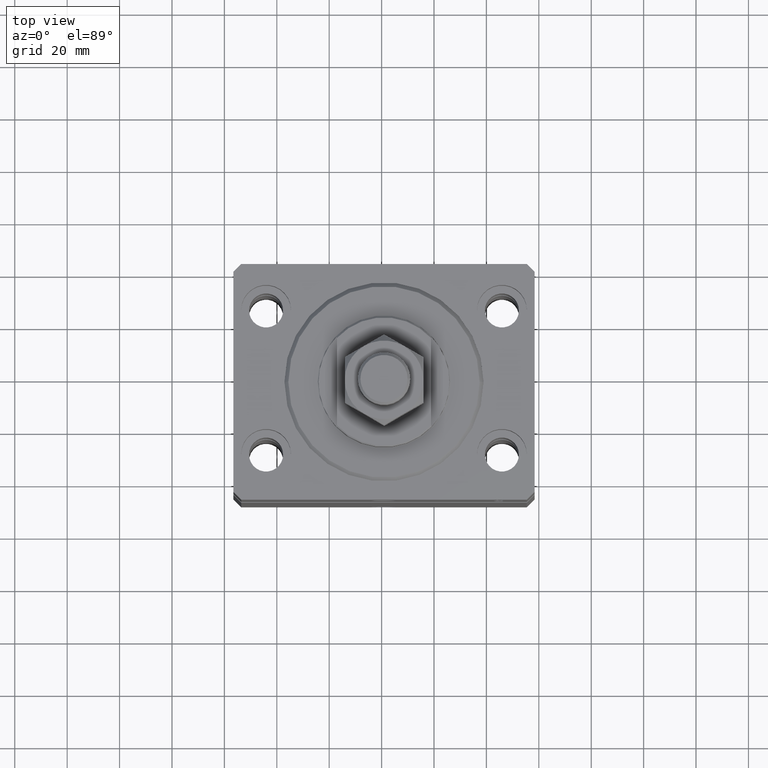
[diagram: clean part render]
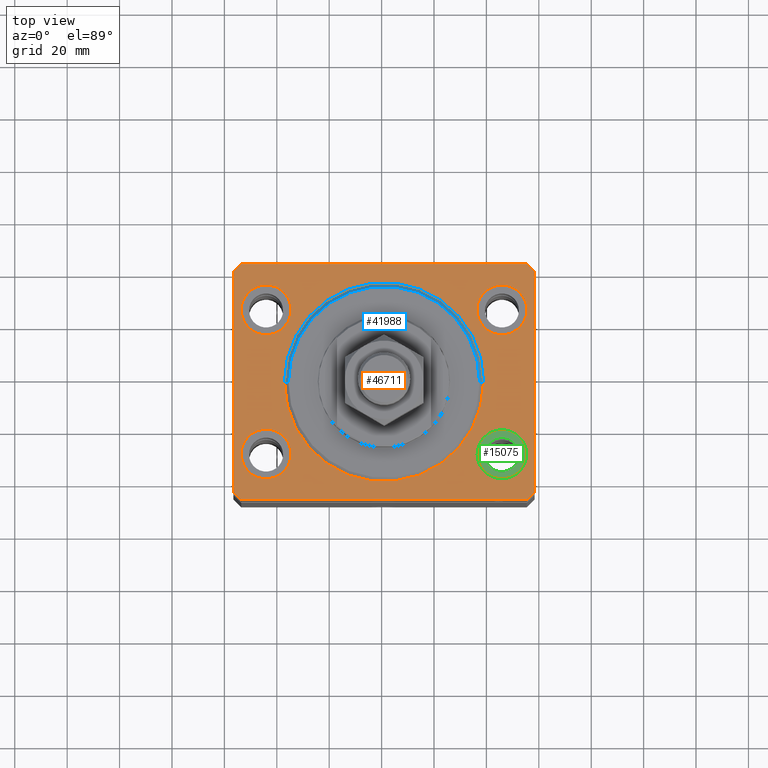
[diagram: same view with three faces highlighted in distinct colors, each labeled with its STEP entity id]
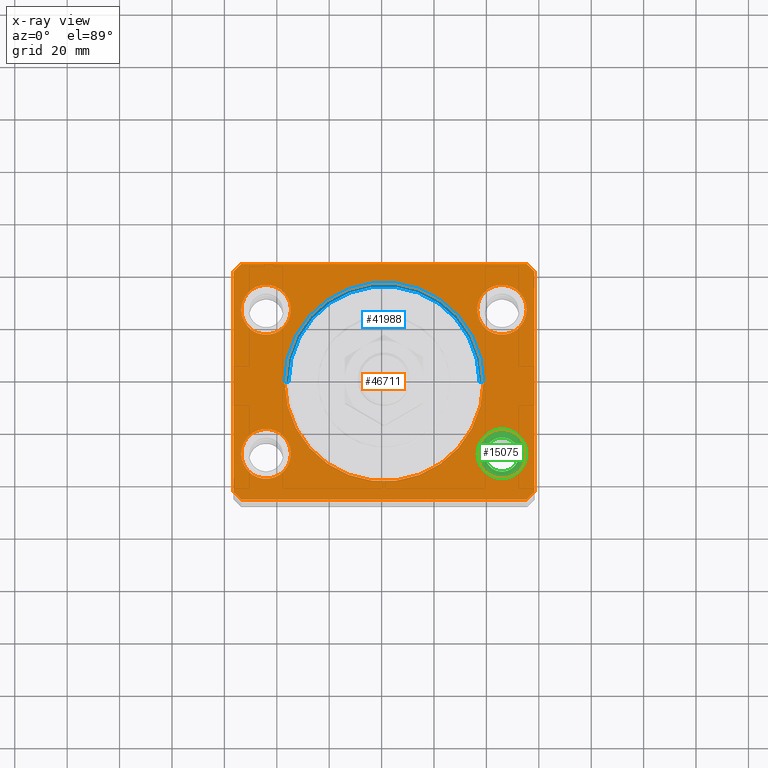
[diagram: x-ray of the same camera — body ghosted, the three highlighted faces saturated]
A machine part, top view with three faces highlighted in distinct colors.
The next image is the same camera in x-ray (body ghosted, the three faces saturated) — at least one of them is partly hidden behind the body in this view.
Their STEP definitions:

[orange] entity #46711 — the highlighted planar face has unit normal (0, 0, 1).
#166 = CARTESIAN_POINT ( 'NONE',  ( 54.50000000000058975, 45.00000000000002842, 0.000000000000000000 ) ) ;
#545 = CARTESIAN_POINT ( 'NONE',  ( -45.00000000000000000, -27.49999999999999645, 0.000000000000000000 ) ) ;
#829 = CARTESIAN_POINT ( 'NONE',  ( -57.50000000000000711, -42.00000000000000711, 0.000000000000000000 ) ) ;
#1154 = CARTESIAN_POINT ( 'NONE',  ( -35.50000000000000000, -27.49999999999999645, 0.000000000000000000 ) ) ;
#1348 = EDGE_LOOP ( 'NONE', ( #20866, #8584 ) ) ;
#1700 = AXIS2_PLACEMENT_3D ( 'NONE', #47651, #36268, #2964 ) ;
#2423 = CIRCLE ( 'NONE', #11755, 9.500000000000001776 ) ;
#2848 = VERTEX_POINT ( 'NONE', #28192 ) ;
#2964 = DIRECTION ( 'NONE',  ( 1.000000000000000000, 0.000000000000000000, 0.000000000000000000 ) ) ;
#4468 = LINE ( 'NONE', #829, #17046 ) ;
#4690 = CARTESIAN_POINT ( 'NONE',  ( 54.50000000000000711, -44.99999999999998579, 0.000000000000000000 ) ) ;
#4784 = FACE_BOUND ( 'NONE', #20594, .T. ) ;
#4891 = EDGE_CURVE ( 'NONE', #34683, #7607, #33095, .T. ) ;
#5012 = CARTESIAN_POINT ( 'NONE',  ( 0.000000000000000000, 0.000000000000000000, 0.000000000000000000 ) ) ;
#5207 = CARTESIAN_POINT ( 'NONE',  ( 0.000000000000000000, 0.000000000000000000, 0.000000000000000000 ) ) ;
#5492 = VERTEX_POINT ( 'NONE', #45613 ) ;
#6067 = AXIS2_PLACEMENT_3D ( 'NONE', #5012, #34206, #45593 ) ;
#6200 = AXIS2_PLACEMENT_3D ( 'NONE', #43903, #15007, #19144 ) ;
#7425 = CARTESIAN_POINT ( 'NONE',  ( 45.00000000000000000, -27.49999999999999645, 0.000000000000000000 ) ) ;
#7446 = ORIENTED_EDGE ( 'NONE', *, *, #32871, .T. ) ;
#7488 = LINE ( 'NONE', #18926, #12066 ) ;
#7607 = VERTEX_POINT ( 'NONE', #35770 ) ;
#7739 = VERTEX_POINT ( 'NONE', #17545 ) ;
#7815 = DIRECTION ( 'NONE',  ( 0.000000000000000000, 0.000000000000000000, 1.000000000000000000 ) ) ;
#7885 = VERTEX_POINT ( 'NONE', #23373 ) ;
#8500 = AXIS2_PLACEMENT_3D ( 'NONE', #47597, #33287, #25780 ) ;
#8584 = ORIENTED_EDGE ( 'NONE', *, *, #27821, .F. ) ;
#8663 = FACE_BOUND ( 'NONE', #14512, .T. ) ;
#8775 = CARTESIAN_POINT ( 'NONE',  ( 45.00000000000000000, 27.50000000000001776, 0.000000000000000000 ) ) ;
#8897 = FACE_BOUND ( 'NONE', #45175, .T. ) ;
#9045 = ORIENTED_EDGE ( 'NONE', *, *, #13120, .T. ) ;
#9283 = ORIENTED_EDGE ( 'NONE', *, *, #20931, .T. ) ;
#9565 = DIRECTION ( 'NONE',  ( 1.000000000000000000, 0.000000000000000000, 0.000000000000000000 ) ) ;
#10306 = ORIENTED_EDGE ( 'NONE', *, *, #28306, .T. ) ;
#11247 = VERTEX_POINT ( 'NONE', #41577 ) ;
#11358 = EDGE_CURVE ( 'NONE', #2848, #11247, #44135, .T. ) ;
#11755 = AXIS2_PLACEMENT_3D ( 'NONE', #545, #40878, #22690 ) ;
#11803 = LINE ( 'NONE', #23724, #22415 ) ;
#12066 = VECTOR ( 'NONE', #45141, 1000.000000000000000 ) ;
#12102 = CIRCLE ( 'NONE', #31491, 9.500000000000001776 ) ;
#12343 = LINE ( 'NONE', #27201, #30479 ) ;
#12359 = EDGE_CURVE ( 'NONE', #11247, #2848, #13947, .T. ) ;
#12378 = CARTESIAN_POINT ( 'NONE',  ( 57.50000000000000711, -41.99999999999998579, 0.000000000000000000 ) ) ;
#12650 = CIRCLE ( 'NONE', #38296, 9.500000000000001776 ) ;
#13120 = EDGE_CURVE ( 'NONE', #7739, #44106, #4468, .T. ) ;
#13947 = CIRCLE ( 'NONE', #8500, 9.500000000000001776 ) ;
#14238 = CARTESIAN_POINT ( 'NONE',  ( -54.50000000000000711, -45.00000000000000000, 0.000000000000000000 ) ) ;
#14512 = EDGE_LOOP ( 'NONE', ( #44818, #47635 ) ) ;
#14753 = CIRCLE ( 'NONE', #6200, 9.500000000000001776 ) ;
#15007 = DIRECTION ( 'NONE',  ( 0.000000000000000000, 0.000000000000000000, 1.000000000000000000 ) ) ;
#15225 = EDGE_CURVE ( 'NONE', #26552, #31194, #11803, .T. ) ;
#15913 = DIRECTION ( 'NONE',  ( 0.7071067811865491270, -0.7071067811865459074, 0.000000000000000000 ) ) ;
#17046 = VECTOR ( 'NONE', #15913, 1000.000000000000114 ) ;
#17054 = AXIS2_PLACEMENT_3D ( 'NONE', #5207, #17360, #9565 ) ;
#17360 = DIRECTION ( 'NONE',  ( 0.000000000000000000, 0.000000000000000000, 1.000000000000000000 ) ) ;
#17367 = CARTESIAN_POINT ( 'NONE',  ( -54.50000000000000000, -27.49999999999999645, 0.000000000000000000 ) ) ;
#17432 = ORIENTED_EDGE ( 'NONE', *, *, #27925, .T. ) ;
#17545 = CARTESIAN_POINT ( 'NONE',  ( -57.50000000000000711, -42.00000000000000711, 0.000000000000000000 ) ) ;
#17700 = ORIENTED_EDGE ( 'NONE', *, *, #40687, .T. ) ;
#17775 = AXIS2_PLACEMENT_3D ( 'NONE', #8775, #31618, #27977 ) ;
#17968 = EDGE_CURVE ( 'NONE', #7607, #34683, #23922, .T. ) ;
#18340 = VERTEX_POINT ( 'NONE', #4690 ) ;
#18617 = ORIENTED_EDGE ( 'NONE', *, *, #15225, .T. ) ;
#18926 = CARTESIAN_POINT ( 'NONE',  ( 54.50000000000058975, 45.00000000000002842, 0.000000000000000000 ) ) ;
#19144 = DIRECTION ( 'NONE',  ( 1.000000000000000000, 0.000000000000000000, 0.000000000000000000 ) ) ;
#19184 = DIRECTION ( 'NONE',  ( 0.000000000000000000, 0.000000000000000000, 1.000000000000000000 ) ) ;
#19346 = CARTESIAN_POINT ( 'NONE',  ( -54.50000000000000000, 27.50000000000000355, 0.000000000000000000 ) ) ;
#19389 = PLANE ( 'NONE',  #6067 ) ;
#19596 = VECTOR ( 'NONE', #27278, 1000.000000000000000 ) ;
#19849 = CARTESIAN_POINT ( 'NONE',  ( -54.49999999999999289, 45.00000000000000000, 0.000000000000000000 ) ) ;
#20594 = EDGE_LOOP ( 'NONE', ( #37831, #25234 ) ) ;
#20866 = ORIENTED_EDGE ( 'NONE', *, *, #22053, .F. ) ;
#20931 = EDGE_CURVE ( 'NONE', #44106, #18340, #36347, .T. ) ;
#21176 = ORIENTED_EDGE ( 'NONE', *, *, #4891, .F. ) ;
#21648 = VERTEX_POINT ( 'NONE', #22865 ) ;
#21953 = DIRECTION ( 'NONE',  ( 0.000000000000000000, 0.000000000000000000, 1.000000000000000000 ) ) ;
#21965 = VERTEX_POINT ( 'NONE', #19346 ) ;
#21966 = CARTESIAN_POINT ( 'NONE',  ( 57.50000000000055422, 41.99999999999997868, 0.000000000000000000 ) ) ;
#22053 = EDGE_CURVE ( 'NONE', #39234, #7885, #38753, .T. ) ;
#22109 = EDGE_CURVE ( 'NONE', #5492, #42129, #36770, .T. ) ;
#22415 = VECTOR ( 'NONE', #41434, 1000.000000000000000 ) ;
#22517 = DIRECTION ( 'NONE',  ( 0.000000000000000000, 0.000000000000000000, 1.000000000000000000 ) ) ;
#22671 = CIRCLE ( 'NONE', #1700, 38.00000000000000000 ) ;
#22690 = DIRECTION ( 'NONE',  ( 1.000000000000000000, 0.000000000000000000, 0.000000000000000000 ) ) ;
#22788 = FACE_BOUND ( 'NONE', #1348, .T. ) ;
#22865 = CARTESIAN_POINT ( 'NONE',  ( -35.50000000000000000, 27.50000000000000355, 0.000000000000000000 ) ) ;
#23039 = FACE_BOUND ( 'NONE', #30150, .T. ) ;
#23373 = CARTESIAN_POINT ( 'NONE',  ( -38.00000000000000000, 4.653657836759941941E-15, 0.000000000000000000 ) ) ;
#23724 = CARTESIAN_POINT ( 'NONE',  ( -54.49999999999999289, 45.00000000000000000, 0.000000000000000000 ) ) ;
#23922 = CIRCLE ( 'NONE', #42516, 9.500000000000001776 ) ;
#24247 = VECTOR ( 'NONE', #29049, 1000.000000000000000 ) ;
#24374 = EDGE_CURVE ( 'NONE', #21648, #21965, #14753, .T. ) ;
#25136 = CARTESIAN_POINT ( 'NONE',  ( -54.50000000000000711, -45.00000000000000000, 0.000000000000000000 ) ) ;
#25177 = VERTEX_POINT ( 'NONE', #12378 ) ;
#25234 = ORIENTED_EDGE ( 'NONE', *, *, #44758, .F. ) ;
#25418 = LINE ( 'NONE', #25902, #24247 ) ;
#25609 = CARTESIAN_POINT ( 'NONE',  ( 45.00000000000000000, -27.49999999999999645, 0.000000000000000000 ) ) ;
#25780 = DIRECTION ( 'NONE',  ( 1.000000000000000000, 0.000000000000000000, 0.000000000000000000 ) ) ;
#25902 = CARTESIAN_POINT ( 'NONE',  ( -57.49999999999998579, 42.00000000000000711, 0.000000000000000000 ) ) ;
#26552 = VERTEX_POINT ( 'NONE', #19849 ) ;
#26798 = CARTESIAN_POINT ( 'NONE',  ( -45.00000000000000000, -27.49999999999999645, 0.000000000000000000 ) ) ;
#27040 = LINE ( 'NONE', #41818, #19596 ) ;
#27201 = CARTESIAN_POINT ( 'NONE',  ( 54.50000000000000711, -44.99999999999998579, 0.000000000000000000 ) ) ;
#27278 = DIRECTION ( 'NONE',  ( 6.443258625056715108E-15, 1.000000000000000000, 0.000000000000000000 ) ) ;
#27451 = CARTESIAN_POINT ( 'NONE',  ( 54.50000000000000000, -27.49999999999999645, 0.000000000000000000 ) ) ;
#27821 = EDGE_CURVE ( 'NONE', #7885, #39234, #22671, .T. ) ;
#27925 = EDGE_CURVE ( 'NONE', #25177, #5492, #27040, .T. ) ;
#27977 = DIRECTION ( 'NONE',  ( 1.000000000000000000, 0.000000000000000000, 0.000000000000000000 ) ) ;
#28192 = CARTESIAN_POINT ( 'NONE',  ( 54.50000000000000000, 27.50000000000001776, 0.000000000000000000 ) ) ;
#28306 = EDGE_CURVE ( 'NONE', #31194, #7739, #25418, .T. ) ;
#29049 = DIRECTION ( 'NONE',  ( -2.478176394252581141E-16, -1.000000000000000000, 0.000000000000000000 ) ) ;
#29060 = DIRECTION ( 'NONE',  ( 1.000000000000000000, 1.273191542001326317E-16, 0.000000000000000000 ) ) ;
#29249 = DIRECTION ( 'NONE',  ( -0.7071067811865376918, 0.7071067811865574537, 0.000000000000000000 ) ) ;
#30150 = EDGE_LOOP ( 'NONE', ( #39009, #42426 ) ) ;
#30322 = EDGE_CURVE ( 'NONE', #31092, #37824, #2423, .T. ) ;
#30479 = VECTOR ( 'NONE', #38581, 1000.000000000000000 ) ;
#31092 = VERTEX_POINT ( 'NONE', #17367 ) ;
#31194 = VERTEX_POINT ( 'NONE', #37738 ) ;
#31491 = AXIS2_PLACEMENT_3D ( 'NONE', #37388, #19184, #38118 ) ;
#31618 = DIRECTION ( 'NONE',  ( 0.000000000000000000, 0.000000000000000000, 1.000000000000000000 ) ) ;
#32871 = EDGE_CURVE ( 'NONE', #18340, #25177, #12343, .T. ) ;
#33095 = CIRCLE ( 'NONE', #43939, 9.500000000000001776 ) ;
#33287 = DIRECTION ( 'NONE',  ( 0.000000000000000000, 0.000000000000000000, 1.000000000000000000 ) ) ;
#33317 = VECTOR ( 'NONE', #29249, 999.9999999999998863 ) ;
#34206 = DIRECTION ( 'NONE',  ( 0.000000000000000000, 0.000000000000000000, 1.000000000000000000 ) ) ;
#34683 = VERTEX_POINT ( 'NONE', #27451 ) ;
#35103 = EDGE_CURVE ( 'NONE', #37824, #31092, #12650, .T. ) ;
#35770 = CARTESIAN_POINT ( 'NONE',  ( 35.50000000000000000, -27.49999999999999645, 0.000000000000000000 ) ) ;
#36081 = EDGE_LOOP ( 'NONE', ( #17700, #18617, #10306, #9045, #9283, #7446, #17432, #40714 ) ) ;
#36268 = DIRECTION ( 'NONE',  ( 0.000000000000000000, 0.000000000000000000, 1.000000000000000000 ) ) ;
#36347 = LINE ( 'NONE', #14238, #44114 ) ;
#36770 = LINE ( 'NONE', #21966, #33317 ) ;
#37388 = CARTESIAN_POINT ( 'NONE',  ( -45.00000000000000000, 27.50000000000000355, 0.000000000000000000 ) ) ;
#37738 = CARTESIAN_POINT ( 'NONE',  ( -57.49999999999998579, 42.00000000000000711, 0.000000000000000000 ) ) ;
#37824 = VERTEX_POINT ( 'NONE', #1154 ) ;
#37830 = FACE_OUTER_BOUND ( 'NONE', #36081, .T. ) ;
#37831 = ORIENTED_EDGE ( 'NONE', *, *, #24374, .F. ) ;
#38118 = DIRECTION ( 'NONE',  ( 1.000000000000000000, 0.000000000000000000, 0.000000000000000000 ) ) ;
#38296 = AXIS2_PLACEMENT_3D ( 'NONE', #26798, #7815, #40620 ) ;
#38581 = DIRECTION ( 'NONE',  ( 0.7071067811865483499, 0.7071067811865466846, 0.000000000000000000 ) ) ;
#38753 = CIRCLE ( 'NONE', #17054, 38.00000000000000000 ) ;
#39009 = ORIENTED_EDGE ( 'NONE', *, *, #35103, .F. ) ;
#39234 = VERTEX_POINT ( 'NONE', #42090 ) ;
#39678 = DIRECTION ( 'NONE',  ( 1.000000000000000000, 0.000000000000000000, 0.000000000000000000 ) ) ;
#40620 = DIRECTION ( 'NONE',  ( 1.000000000000000000, 0.000000000000000000, 0.000000000000000000 ) ) ;
#40687 = EDGE_CURVE ( 'NONE', #42129, #26552, #7488, .T. ) ;
#40714 = ORIENTED_EDGE ( 'NONE', *, *, #22109, .T. ) ;
#40878 = DIRECTION ( 'NONE',  ( 0.000000000000000000, 0.000000000000000000, 1.000000000000000000 ) ) ;
#40945 = DIRECTION ( 'NONE',  ( 1.000000000000000000, 0.000000000000000000, 0.000000000000000000 ) ) ;
#41434 = DIRECTION ( 'NONE',  ( -0.7071067811865483499, -0.7071067811865466846, 0.000000000000000000 ) ) ;
#41577 = CARTESIAN_POINT ( 'NONE',  ( 35.50000000000000000, 27.50000000000001776, 0.000000000000000000 ) ) ;
#41818 = CARTESIAN_POINT ( 'NONE',  ( 57.50000000000000711, -41.99999999999998579, 0.000000000000000000 ) ) ;
#42090 = CARTESIAN_POINT ( 'NONE',  ( 38.00000000000000000, 0.000000000000000000, 0.000000000000000000 ) ) ;
#42129 = VERTEX_POINT ( 'NONE', #166 ) ;
#42426 = ORIENTED_EDGE ( 'NONE', *, *, #30322, .F. ) ;
#42516 = AXIS2_PLACEMENT_3D ( 'NONE', #7425, #22517, #40945 ) ;
#43903 = CARTESIAN_POINT ( 'NONE',  ( -45.00000000000000000, 27.50000000000000355, 0.000000000000000000 ) ) ;
#43939 = AXIS2_PLACEMENT_3D ( 'NONE', #25609, #21953, #39678 ) ;
#44093 = ORIENTED_EDGE ( 'NONE', *, *, #17968, .F. ) ;
#44106 = VERTEX_POINT ( 'NONE', #25136 ) ;
#44114 = VECTOR ( 'NONE', #29060, 1000.000000000000000 ) ;
#44135 = CIRCLE ( 'NONE', #17775, 9.500000000000001776 ) ;
#44758 = EDGE_CURVE ( 'NONE', #21965, #21648, #12102, .T. ) ;
#44818 = ORIENTED_EDGE ( 'NONE', *, *, #11358, .F. ) ;
#45141 = DIRECTION ( 'NONE',  ( -1.000000000000000000, -2.546383084002639322E-16, 0.000000000000000000 ) ) ;
#45175 = EDGE_LOOP ( 'NONE', ( #21176, #44093 ) ) ;
#45593 = DIRECTION ( 'NONE',  ( 1.000000000000000000, 0.000000000000000000, -0.000000000000000000 ) ) ;
#45613 = CARTESIAN_POINT ( 'NONE',  ( 57.50000000000055422, 41.99999999999997868, 0.000000000000000000 ) ) ;
#46711 = ADVANCED_FACE ( 'NONE', ( #23039, #8897, #8663, #4784, #22788, #37830 ), #19389, .T. ) ;
#47597 = CARTESIAN_POINT ( 'NONE',  ( 45.00000000000000000, 27.50000000000001776, 0.000000000000000000 ) ) ;
#47635 = ORIENTED_EDGE ( 'NONE', *, *, #12359, .F. ) ;
#47651 = CARTESIAN_POINT ( 'NONE',  ( 0.000000000000000000, 0.000000000000000000, 0.000000000000000000 ) ) ;

[blue] entity #41988 — the highlighted conical surface has half-angle 45 deg.
#3013 = CIRCLE ( 'NONE', #10738, 38.00000000000000000 ) ;
#3502 = ORIENTED_EDGE ( 'NONE', *, *, #28964, .F. ) ;
#3722 = CARTESIAN_POINT ( 'NONE',  ( 0.000000000000000000, 0.000000000000000000, 1.499999999999987566 ) ) ;
#4860 = VECTOR ( 'NONE', #37248, 1000.000000000000114 ) ;
#5507 = DIRECTION ( 'NONE',  ( 1.000000000000000000, 0.000000000000000000, 0.000000000000000000 ) ) ;
#6931 = DIRECTION ( 'NONE',  ( 1.000000000000000000, 0.000000000000000000, 0.000000000000000000 ) ) ;
#7620 = VERTEX_POINT ( 'NONE', #35050 ) ;
#8690 = DIRECTION ( 'NONE',  ( -0.000000000000000000, -0.000000000000000000, -1.000000000000000000 ) ) ;
#10191 = VERTEX_POINT ( 'NONE', #11202 ) ;
#10738 = AXIS2_PLACEMENT_3D ( 'NONE', #44094, #40215, #6931 ) ;
#11202 = CARTESIAN_POINT ( 'NONE',  ( 36.50000000000000000, 0.000000000000000000, 0.000000000000000000 ) ) ;
#11494 = FACE_OUTER_BOUND ( 'NONE', #20022, .T. ) ;
#12332 = CARTESIAN_POINT ( 'NONE',  ( 0.000000000000000000, 0.000000000000000000, 0.000000000000000000 ) ) ;
#12481 = VECTOR ( 'NONE', #32999, 1000.000000000000114 ) ;
#14369 = VERTEX_POINT ( 'NONE', #38207 ) ;
#15936 = AXIS2_PLACEMENT_3D ( 'NONE', #3722, #37020, #44775 ) ;
#18220 = AXIS2_PLACEMENT_3D ( 'NONE', #12332, #8690, #5507 ) ;
#18985 = CIRCLE ( 'NONE', #18220, 36.50000000000000000 ) ;
#20022 = EDGE_LOOP ( 'NONE', ( #39654, #24664, #30699, #3502 ) ) ;
#20833 = EDGE_CURVE ( 'NONE', #7620, #14369, #3013, .T. ) ;
#21594 = CARTESIAN_POINT ( 'NONE',  ( 38.00000000000000000, 0.000000000000000000, 1.499999999999987566 ) ) ;
#22074 = LINE ( 'NONE', #21594, #12481 ) ;
#24112 = CARTESIAN_POINT ( 'NONE',  ( -36.50000000000000000, 4.561809326823889791E-15, 0.000000000000000000 ) ) ;
#24664 = ORIENTED_EDGE ( 'NONE', *, *, #32151, .T. ) ;
#26105 = LINE ( 'NONE', #40882, #4860 ) ;
#28857 = VERTEX_POINT ( 'NONE', #24112 ) ;
#28964 = EDGE_CURVE ( 'NONE', #10191, #7620, #22074, .T. ) ;
#29205 = CONICAL_SURFACE ( 'NONE', #15936, 38.00000000000000000, 0.7853981633974529419 ) ;
#30699 = ORIENTED_EDGE ( 'NONE', *, *, #20833, .F. ) ;
#32151 = EDGE_CURVE ( 'NONE', #28857, #14369, #26105, .T. ) ;
#32999 = DIRECTION ( 'NONE',  ( 0.7071067811865507924, 0.000000000000000000, 0.7071067811865441310 ) ) ;
#35050 = CARTESIAN_POINT ( 'NONE',  ( 38.00000000000000000, 4.653657836759941941E-15, 1.499999999999987566 ) ) ;
#37020 = DIRECTION ( 'NONE',  ( -0.000000000000000000, -0.000000000000000000, 1.000000000000000000 ) ) ;
#37248 = DIRECTION ( 'NONE',  ( -0.7071067811865507924, 8.659560562354972301E-17, 0.7071067811865441310 ) ) ;
#37868 = EDGE_CURVE ( 'NONE', #28857, #10191, #18985, .T. ) ;
#38207 = CARTESIAN_POINT ( 'NONE',  ( -38.00000000000000000, 0.000000000000000000, 1.499999999999987566 ) ) ;
#39654 = ORIENTED_EDGE ( 'NONE', *, *, #37868, .F. ) ;
#40215 = DIRECTION ( 'NONE',  ( -0.000000000000000000, -0.000000000000000000, 1.000000000000000000 ) ) ;
#40882 = CARTESIAN_POINT ( 'NONE',  ( -38.00000000000000000, 4.653657836759941152E-15, 1.499999999999987566 ) ) ;
#41988 = ADVANCED_FACE ( 'NONE', ( #11494 ), #29205, .T. ) ;
#44094 = CARTESIAN_POINT ( 'NONE',  ( 0.000000000000000000, 0.000000000000000000, 1.499999999999987566 ) ) ;
#44775 = DIRECTION ( 'NONE',  ( 1.000000000000000000, 0.000000000000000000, 0.000000000000000000 ) ) ;

[green] entity #15075 — the highlighted planar face has unit normal (0, 0, 1).
#2486 = DIRECTION ( 'NONE',  ( 1.000000000000000000, 0.000000000000000000, 0.000000000000000000 ) ) ;
#2831 = CARTESIAN_POINT ( 'NONE',  ( 45.00000000000000000, -27.49999999999999645, -13.00000000000000000 ) ) ;
#3088 = CARTESIAN_POINT ( 'NONE',  ( 45.00000000000000000, -27.49999999999999645, -13.00000000000000000 ) ) ;
#3665 = EDGE_CURVE ( 'NONE', #11578, #17848, #25312, .T. ) ;
#3880 = CIRCLE ( 'NONE', #9326, 9.500000000000001776 ) ;
#4111 = CARTESIAN_POINT ( 'NONE',  ( 51.50000000000000000, -27.49999999999999645, -13.00000000000000000 ) ) ;
#4575 = CIRCLE ( 'NONE', #31742, 9.500000000000001776 ) ;
#5949 = EDGE_CURVE ( 'NONE', #17848, #11578, #29250, .T. ) ;
#8168 = VERTEX_POINT ( 'NONE', #30533 ) ;
#9326 = AXIS2_PLACEMENT_3D ( 'NONE', #32862, #32140, #2486 ) ;
#9885 = DIRECTION ( 'NONE',  ( 1.000000000000000000, 0.000000000000000000, -0.000000000000000000 ) ) ;
#11578 = VERTEX_POINT ( 'NONE', #4111 ) ;
#13547 = PLANE ( 'NONE',  #27864 ) ;
#14761 = EDGE_CURVE ( 'NONE', #15015, #8168, #4575, .T. ) ;
#15015 = VERTEX_POINT ( 'NONE', #36135 ) ;
#15075 = ADVANCED_FACE ( 'NONE', ( #43166, #32731 ), #13547, .T. ) ;
#17474 = DIRECTION ( 'NONE',  ( 0.000000000000000000, 0.000000000000000000, 1.000000000000000000 ) ) ;
#17848 = VERTEX_POINT ( 'NONE', #21085 ) ;
#17924 = DIRECTION ( 'NONE',  ( 0.000000000000000000, 0.000000000000000000, 1.000000000000000000 ) ) ;
#20035 = ORIENTED_EDGE ( 'NONE', *, *, #14761, .T. ) ;
#20564 = CARTESIAN_POINT ( 'NONE',  ( 45.00000000000000000, -27.49999999999999645, -13.00000000000000000 ) ) ;
#21085 = CARTESIAN_POINT ( 'NONE',  ( 38.50000000000000000, -27.49999999999999645, -13.00000000000000000 ) ) ;
#22665 = EDGE_LOOP ( 'NONE', ( #40680, #28724 ) ) ;
#23676 = EDGE_CURVE ( 'NONE', #8168, #15015, #3880, .T. ) ;
#24694 = DIRECTION ( 'NONE',  ( 1.000000000000000000, 0.000000000000000000, 0.000000000000000000 ) ) ;
#25312 = CIRCLE ( 'NONE', #45437, 6.499999999999999112 ) ;
#27679 = EDGE_LOOP ( 'NONE', ( #44236, #20035 ) ) ;
#27864 = AXIS2_PLACEMENT_3D ( 'NONE', #2831, #47515, #9885 ) ;
#28098 = DIRECTION ( 'NONE',  ( 0.000000000000000000, 0.000000000000000000, 1.000000000000000000 ) ) ;
#28724 = ORIENTED_EDGE ( 'NONE', *, *, #5949, .F. ) ;
#29250 = CIRCLE ( 'NONE', #33903, 6.499999999999999112 ) ;
#30533 = CARTESIAN_POINT ( 'NONE',  ( 54.50000000000000000, -27.49999999999999645, -13.00000000000000000 ) ) ;
#31742 = AXIS2_PLACEMENT_3D ( 'NONE', #3088, #17924, #42239 ) ;
#31814 = DIRECTION ( 'NONE',  ( 1.000000000000000000, 0.000000000000000000, 0.000000000000000000 ) ) ;
#32140 = DIRECTION ( 'NONE',  ( 0.000000000000000000, 0.000000000000000000, 1.000000000000000000 ) ) ;
#32731 = FACE_OUTER_BOUND ( 'NONE', #27679, .T. ) ;
#32862 = CARTESIAN_POINT ( 'NONE',  ( 45.00000000000000000, -27.49999999999999645, -13.00000000000000000 ) ) ;
#33903 = AXIS2_PLACEMENT_3D ( 'NONE', #35703, #17474, #31814 ) ;
#35703 = CARTESIAN_POINT ( 'NONE',  ( 45.00000000000000000, -27.49999999999999645, -13.00000000000000000 ) ) ;
#36135 = CARTESIAN_POINT ( 'NONE',  ( 35.50000000000000000, -27.49999999999999645, -13.00000000000000000 ) ) ;
#40680 = ORIENTED_EDGE ( 'NONE', *, *, #3665, .F. ) ;
#42239 = DIRECTION ( 'NONE',  ( 1.000000000000000000, 0.000000000000000000, 0.000000000000000000 ) ) ;
#43166 = FACE_BOUND ( 'NONE', #22665, .T. ) ;
#44236 = ORIENTED_EDGE ( 'NONE', *, *, #23676, .T. ) ;
#45437 = AXIS2_PLACEMENT_3D ( 'NONE', #20564, #28098, #24694 ) ;
#47515 = DIRECTION ( 'NONE',  ( 0.000000000000000000, 0.000000000000000000, 1.000000000000000000 ) ) ;